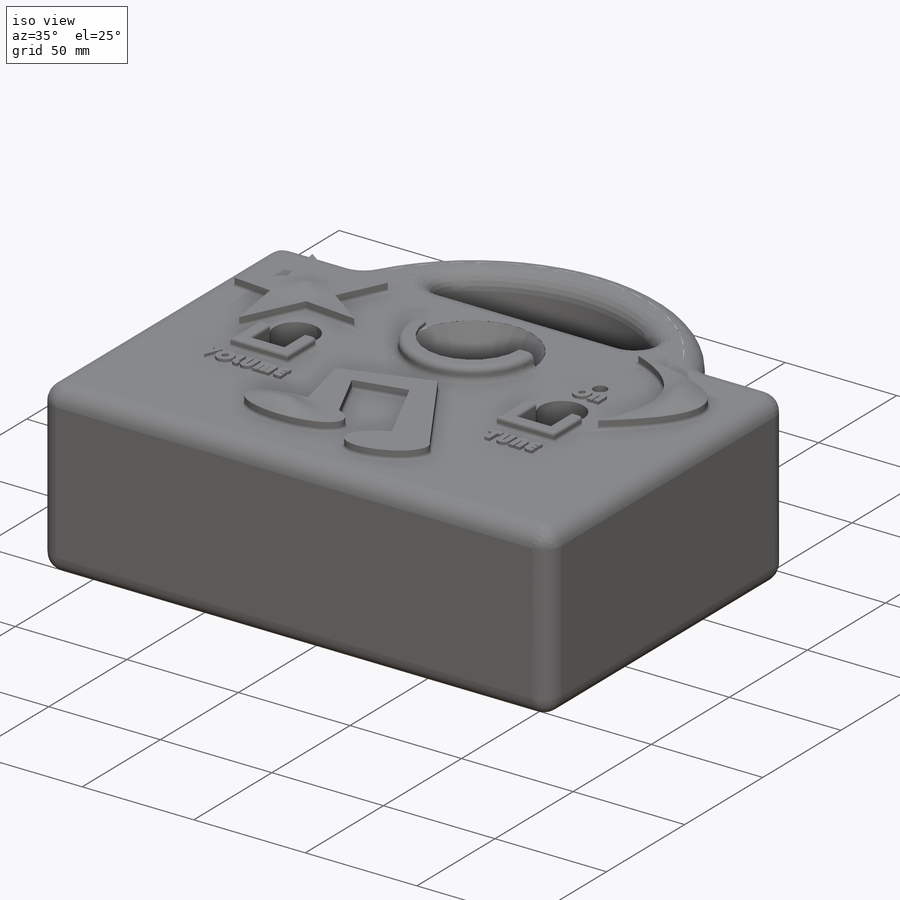
[diagram: iso view]
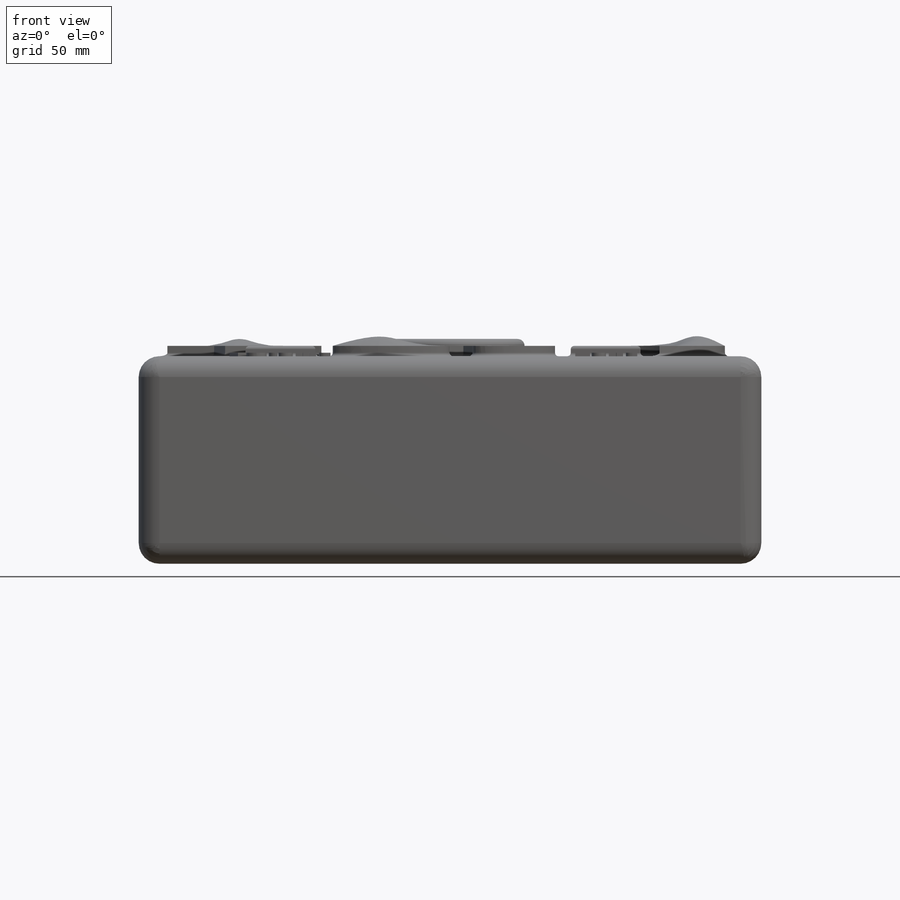
[diagram: front view]
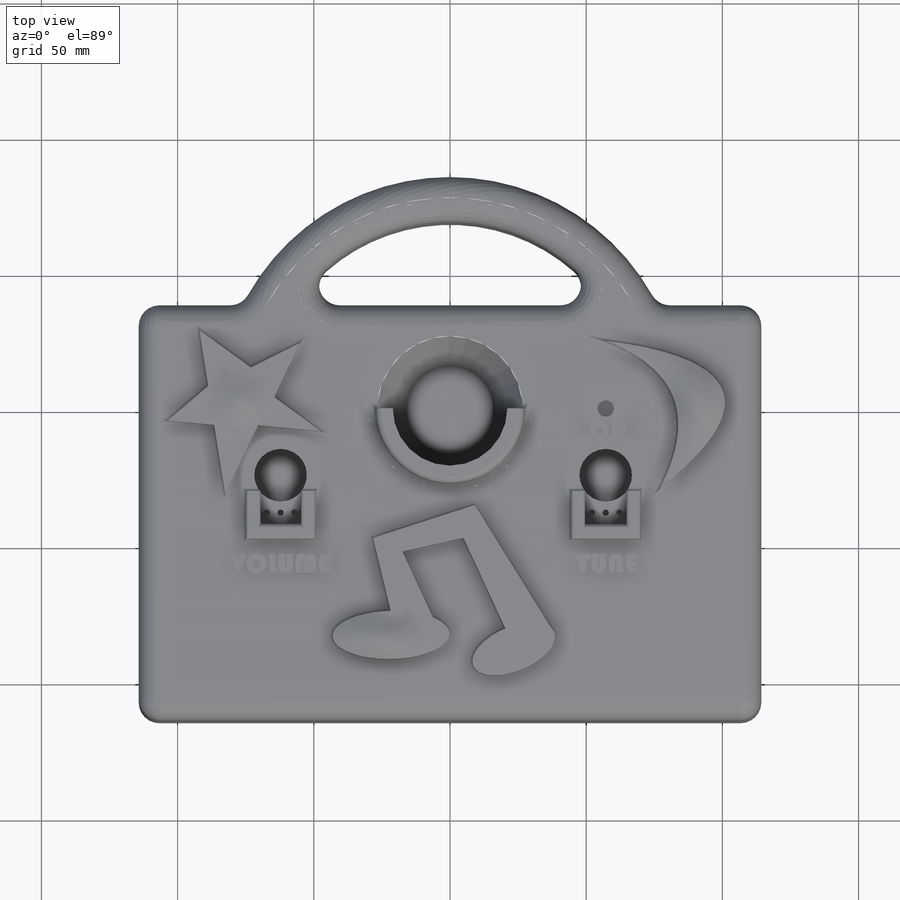
[diagram: top view]
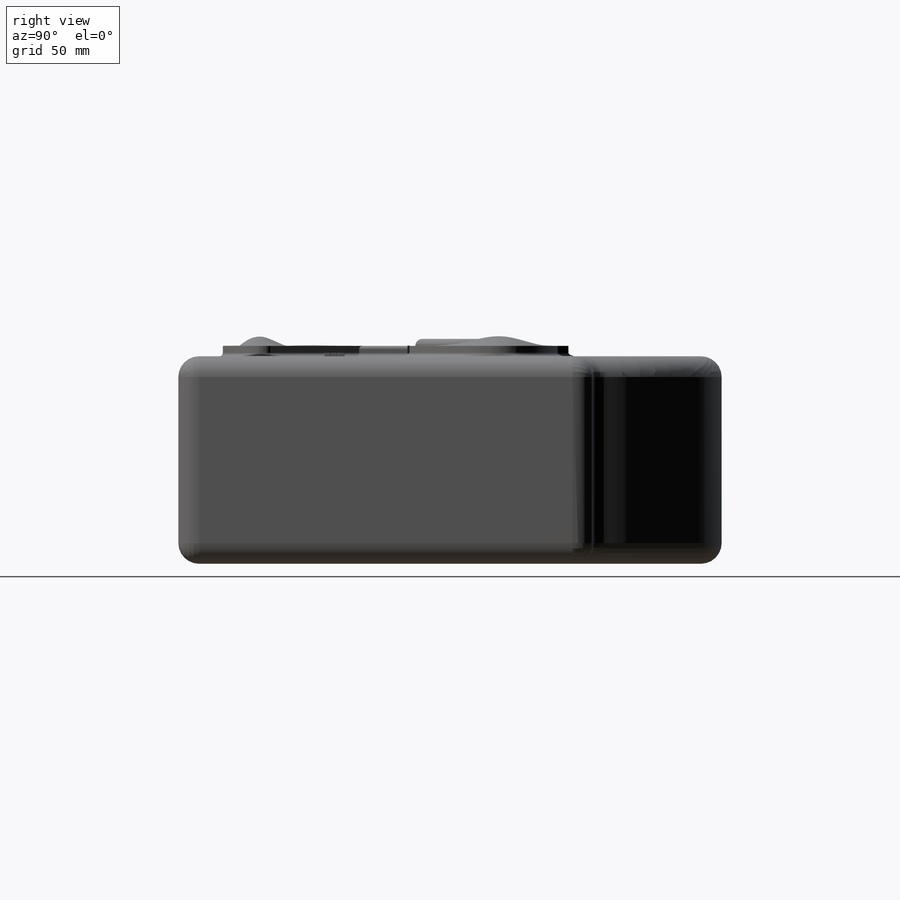
[diagram: right view]
SOLIDWORKS PART (.sldprt)
format: sldprt  version: not decoded by parser v0  size: 2,072,064 bytes
history: native  units: mm
features: sketch x36, cut_extrude x13, extrude x5, plane x5, fillet x4, sweep x4, material x1, revolve x1, dome x1 (+13 scaffold rows collapsed)
feature tree (83):
  scaffold x13  (default folders/planes/origin — collapsed)
  material  "Material <not specified>"
  sketch  "MAIN BODY"
  sketch  "Sketch1"  dims[D1=57.15mm D2=57.15mm D3=38.1mm D4=38.1mm D5=38.1mm D6=152.4mm D7=228.6mm]
  extrude  "body"  Depth=76.2mm
  fillet  "appley-ness"  Radius=7.62mm
  sketch  "Sketch3"  dims[D1=53.34mm]
  sketch  "SPEAKER"
  plane  "speaker backplane"  Offset=22.86mm
  sketch  "Sketch4"  dims[D1=31.75mm]
  sketch  "Sketch5"  dims[c1.D1=2.54mm c1.D2=~7.684806mm c2.D2=90.0deg c3.D2=2.54mm c3.D3=2.54mm c3.D4=6.35mm c3.D5=6.35mm c3.D1=3.81mm c4.D2=45.0deg]
  revolve  "speaker cup"  Angle=180deg
  fillet  "smooth it out"  Radius=2.54mm
  sketch  "back connections"  dims[D1=5.08mm D2=5.08mm D3=7.62mm D4=7.62mm]
  sketch  "tube path"
  sketch  "POTENTIOMETERS"
  sketch  "potentiometer connections"  dims[D13=2.286mm D14=2.286mm D15=2.286mm D16=2.286mm D17=2.286mm D18=2.286mm D1=57.15mm D2=57.15mm D3=38.1mm D4=38.1mm D5=38.1mm D6=38.1mm D7=38.1mm D8=38.1mm D9=5.08mm D10=5.08mm D11=5.08mm D12=5.08mm D19=13.716mm D20=13.716mm]
  cut_extrude  "connection cut"  Depth=12.7mm
  sketch  "potentiometer footprints"  dims[c1.D1=15.494mm c1.D2=15.494mm c1.D3=7.747mm c2.D1=9.652mm c2.D4=13.716mm c2.D5=0.0mm c2.D3=9.652mm c3.D4=15.494mm c3.D5=21.336mm c3.D6=~21.360132mm c3.D7=21.336mm c3.D8=~21.360132mm c3.D9=~22.721603mm c3.D10=~22.721603mm c3.D1=12.7mm c3.D2=12.7mm c4.D5=9.652mm c4.D7=15.494mm c4.D10=~21.360132mm c4.D11=~21.360132mm c4.D12=~22.721603mm c4.D13=12.7mm c4.D14=12.7mm c5.D7=12.7mm c5.D6=~20.01708mm c5.D8=~20.01708mm]
  sketch  "potentiometer buttprints"
  cut_extrude  "footprints"  Depth=6.35mm
  cut_extrude  "buttprints"  Depth=12.7mm
  plane  "sweep reference"
  sketch  "Sketch11"  dims[D1=3.81mm D2=5.588mm D3=5.08mm]
  sketch  "Sketch12"
  sweep  "hold pot 1"
  sketch  "Sketch13"  dims[D1=3.81mm D2=5.334mm D3=5.08mm]
  sketch  "Sketch14"
  sweep  "hold pot 2"
  fillet  "round it out"  Radius=1.27mm
  sketch  "Sketch30"  dims[D1=6.0mm]
  cut_extrude  "LED hole"  Depth=2.54mm
  sketch  "tube connections"  dims[D1=3.81mm D2=3.81mm D3=3.81mm D4=3.81mm D5=3.81mm D6=3.81mm]
  sketch  "tube ends"
  sketch  "ARDUINO"
  plane  "arduino hollow base"  Offset=7.62mm
  plane  "arduino hollow top"  Offset=55.88mm
  plane  "join plane"  Offset=6.35mm
  sketch  "Sketch17"
  cut_extrude  "arduino hollow"  [1 undecoded]
  sketch  "DECORATIVE"
  sketch  "Sketch26"
  extrude  "star, moon, note"  Depth=3.81mm
  fillet  "round bases"  Radius=1.27mm
  dome  "three dee!!!"
  sketch  "Sketch27"
  extrude  "labelz"  Depth=1.27mm
  sketch  "Sketch31"  dims[D1=~2.73055mm]
  extrude  "ON label"  Depth=1.27mm
  sketch  "TEST N PRINT"
  sketch  "Sketch15"
  cut_extrude  "test part fit 1"  Depth=2.54mm
  sketch  "Sketch16"
  cut_extrude  "test part fit 2"  Depth=62.23mm
  sketch  "Sketch19"
  cut_extrude  "top-remove base"  [1 undecoded]
  sketch  "Sketch20"  dims[D1=2.54mm D2=2.54mm D3=2.54mm D4=2.54mm]
  cut_extrude  "top-join"  Depth=3.81mm
  sketch  "Sketch21"
  cut_extrude  "base-remove top"  [1 undecoded]
  sketch  "Sketch22"  dims[D1=2.54mm D2=2.54mm D3=2.54mm D4=2.54mm]
  extrude  "base-join"  Depth=3.81mm
  sketch  "Sketch23"
  cut_extrude  "test arduino fit"  [1 undecoded]
  sketch  "Sketch28"
  cut_extrude  "test pot "  Depth=2.54mm
  sketch  "Sketch29"
  cut_extrude  "test pot 2"  Depth=60.96mm
  sketch  "TUBES"
  sweep  "speaker tubes"
  sweep  "potentiometer tubes"
decode coverage: 33 of 64 modeling features carry decoded parameters
note: ~ marks probable driven/reference dimensions
note: 4 parameter values undecoded
summary: no parameter record found for 4 features
note: suppression state not decoded; provenance and decode notes live in map.json
